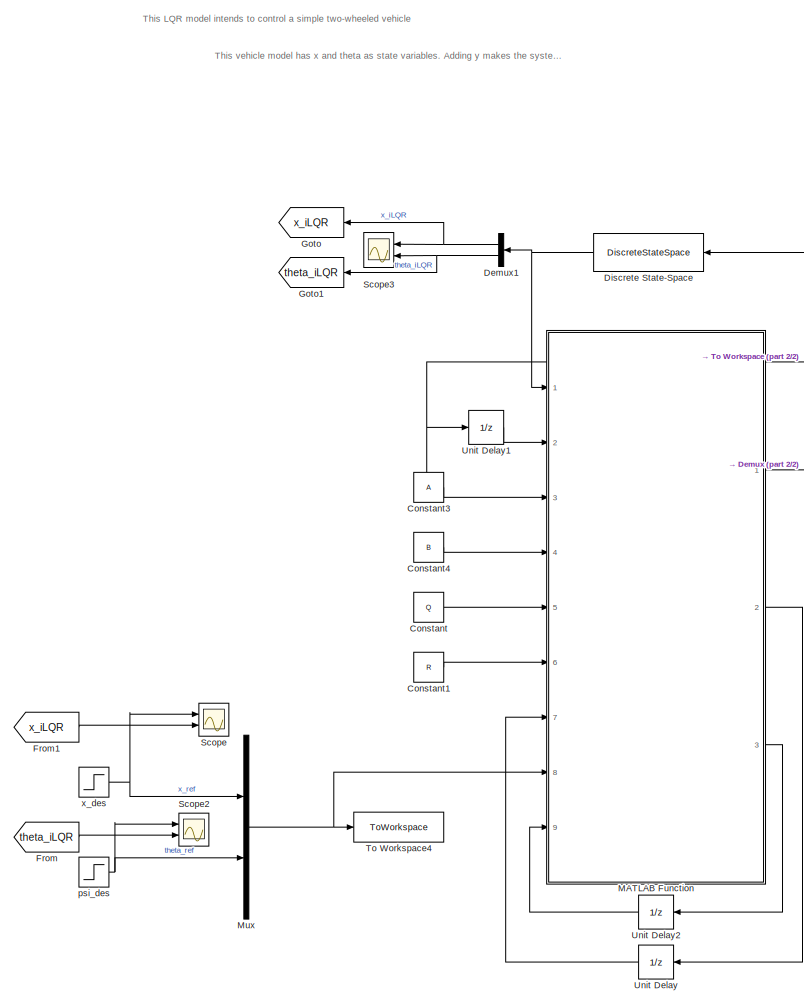
[diagram: root canvas - part 1/2, left side, full height]
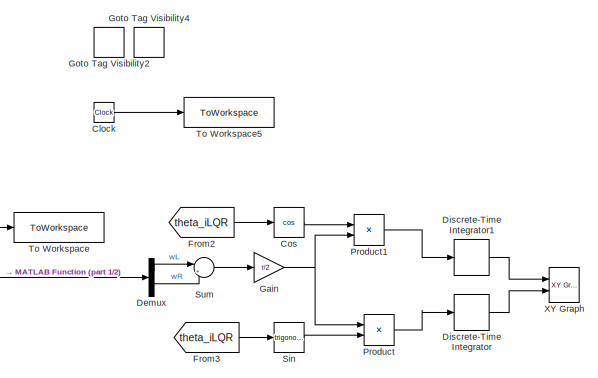
[diagram: root canvas - part 2/2, middle right region]
MODEL slx_ac5df91913a6
KIND model
CONFIG AbsTol = auto
CONFIG EnableMultiTasking = off
CONFIG FixedStep = 0.001
CONFIG MaxStep = 0.01
CONFIG MinStep = auto
CONFIG RelTol = 1e-3
CONFIG SampleTimeConstraint = Unconstrained
CONFIG SolverName = FixedStepDiscrete
CONFIG StartTime = 0.0
CONFIG StopTime = 20
BLOCK [Clock] Clock
BLOCK [Constant] Constant
  Value = Q
BLOCK [Constant] Constant1
  Value = R
BLOCK [Constant] Constant3
  Value = A
BLOCK [Constant] Constant4
  Value = B
BLOCK [Trigonometry] Cos
  Operator = cos
  Ports = [1, 1]
BLOCK [Demux] Demux
  Outputs = 2
  Ports = [1, 2]
BLOCK [Demux] Demux1
  NameLocation = top
  Outputs = 2
  Ports = [1, 2]
BLOCK [DiscreteStateSpace] Discrete State-Space
  A = A
  B = B
  C = eye(2)
  D = zeros(2)
  NameLocation = top
  SampleTime = -1
BLOCK [DiscreteIntegrator] Discrete-Time Integrator
  ICPrevOutput = DiscIntNeverNeededParam
  ICPrevScaledInput = DiscIntNeverNeededParam
  InitialConditionSetting = Auto
  Ports = [1, 1]
  SampleTime = -1
BLOCK [DiscreteIntegrator] Discrete-Time Integrator1
  ICPrevOutput = DiscIntNeverNeededParam
  ICPrevScaledInput = DiscIntNeverNeededParam
  InitialConditionSetting = Auto
  Ports = [1, 1]
  SampleTime = -1
BLOCK [From] From
  GotoTag = theta_iLQR
BLOCK [From] From1
  GotoTag = x_iLQR
BLOCK [From] From2
  GotoTag = theta_iLQR
BLOCK [From] From3
  GotoTag = theta_iLQR
BLOCK [Gain] Gain
  Gain = r/2
BLOCK [Goto] Goto
  GotoTag = x_iLQR
BLOCK [GotoTagVisibility] Goto Tag Visibility2
  GotoTag = x
BLOCK [GotoTagVisibility] Goto Tag Visibility4
  GotoTag = theta
BLOCK [Goto] Goto1
  GotoTag = theta_iLQR
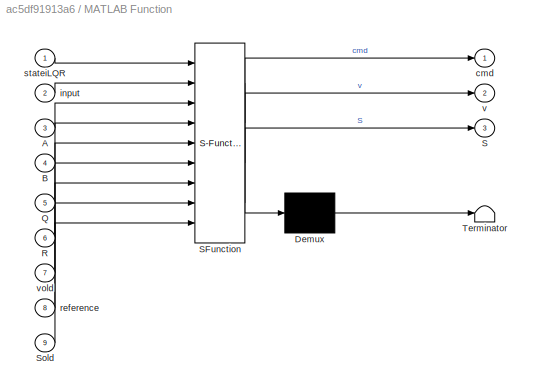
BLOCK [SubSystem] MATLAB Function
  ErrorFcn = Stateflow.Translate.translate
  PermitHierarchicalResolution = ExplicitOnly
  Ports = [9, 3]
  RequestExecContextInheritance = off
  SFBlockType = MATLAB Function
  TreatAsAtomicUnit = on
BLOCK [Demux] MATLAB Function/ Demux 
  Outputs = 1
  Ports = [1, 1]
BLOCK [S-Function] MATLAB Function/ SFunction 
  EnableBusSupport = on
  FunctionName = sf_sfun
  PortCounts = [9 4]
  Ports = [9, 4]
  SFcnIsStateOwnerBlock = off
  SFunctionDeploymentMode = off
  Tag = Stateflow S-Function 2
BLOCK [Terminator] MATLAB Function/ Terminator 
BLOCK [Inport] MATLAB Function/A
  Port = 3
BLOCK [Inport] MATLAB Function/B
  Port = 4
BLOCK [Inport] MATLAB Function/Q
  Port = 5
BLOCK [Inport] MATLAB Function/R
  Port = 6
BLOCK [Outport] MATLAB Function/S
  Port = 3
BLOCK [Inport] MATLAB Function/Sold
  Port = 9
BLOCK [Outport] MATLAB Function/cmd
BLOCK [Inport] MATLAB Function/input
  Port = 2
BLOCK [Inport] MATLAB Function/reference
  Port = 8
BLOCK [Inport] MATLAB Function/stateiLQR
BLOCK [Outport] MATLAB Function/v
  Port = 2
BLOCK [Inport] MATLAB Function/vold
  Port = 7
BLOCK [Mux] Mux
  DisplayOption = bar
  Inputs = 2
  Ports = [2, 1]
BLOCK [Product] Product
  Ports = [2, 1]
BLOCK [Product] Product1
  Ports = [2, 1]
BLOCK [Scope] Scope
  Floating = off
  NumInputPorts = 2
  Ports = [2]
  ScopeSpecificationString = Simulink.scopes.TimeScopeBlockCfg('CurrentConfiguration', extmgr.ConfigurationSet(extmgr.Configuration('Core','General UI',true),extmgr.Configuration('Core','Source UI',true),extmgr.Configuration('Sources','WiredSimulink',true),extmgr.Configuration('Visuals','Time Domain',true,'SerializedDisplays',{struct('MinYLimReal','-0.14621','MaxYLimReal','1.3159','YLabelReal','','MinYLimMag','0.00000','MaxYL...<+1473ch>
BLOCK [Scope] Scope2
  Floating = off
  NumInputPorts = 2
  Ports = [2]
  ScopeSpecificationString = Simulink.scopes.TimeScopeBlockCfg('CurrentConfiguration', extmgr.ConfigurationSet(extmgr.Configuration('Core','General UI',true),extmgr.Configuration('Core','Source UI',true),extmgr.Configuration('Sources','WiredSimulink',true,'DataLoggingVariableName','ScopeData2'),extmgr.Configuration('Visuals','Time Domain',true,'SerializedDisplays',{struct('MinYLimReal','-0.14569','MaxYLimReal','1.31117','YLab...<+1468ch>
BLOCK [Scope] Scope3
  Floating = off
  NameLocation = top
  NumInputPorts = 2
  Ports = [2]
  ScopeSpecificationString = Simulink.scopes.TimeScopeBlockCfg('CurrentConfiguration', extmgr.ConfigurationSet(extmgr.Configuration('Core','General UI',true),extmgr.Configuration('Core','Source UI',true),extmgr.Configuration('Sources','WiredSimulink',true,'DataLoggingVariableName','ScopeData3'),extmgr.Configuration('Visuals','Time Domain',true,'SerializedDisplays',{struct('MinYLimReal','-0.14621','MaxYLimReal','1.3159','YLabe...<+1539ch>
BLOCK [Trigonometry] Sin
  Ports = [1, 1]
BLOCK [Sum] Sum
  Inputs = |++
  Ports = [2, 1]
BLOCK [ToWorkspace] To Workspace
  FixptAsFi = on
  MaxDataPoints = inf
  Ports = [1]
  SampleTime = -1
  VariableName = w
BLOCK [ToWorkspace] To Workspace4
  FixptAsFi = on
  MaxDataPoints = inf
  Ports = [1]
  SampleTime = -1
  VariableName = references
BLOCK [ToWorkspace] To Workspace5
  FixptAsFi = on
  MaxDataPoints = inf
  Ports = [1]
  SampleTime = -1
  VariableName = time
BLOCK [UnitDelay] Unit Delay
  HasFrameUpgradeWarning = on
  InitialCondition = zeros(2,1)
  SampleTime = -1
BLOCK [UnitDelay] Unit Delay1
  HasFrameUpgradeWarning = on
  InitialCondition = [0, 0]
  SampleTime = -1
BLOCK [UnitDelay] Unit Delay2
  HasFrameUpgradeWarning = on
  InitialCondition = Qf
  SampleTime = -1
BLOCK [Reference] XY Graph  REF=simulink/Sinks/XY Graph
  Ports = [2]
  SourceBlock = simulink/Sinks/XY Graph
  SourceProductBaseCode = SL
  SourceType = XY scope.
BLOCK [Step] psi_des
  After = 3.141516
  SampleTime = 0
  Time = 0
BLOCK [Step] x_des
  SampleTime = 0
  Time = 3
ANNOTATION (root): This LQR model intends to control a simple two-wheeled vehicle
ANNOTATION (root): This vehicle model has x and theta as state variables. Adding y makes the system non-controllable. To see the inertial movement of the robot, refer to the xy scope
LINE Clock:1 -> To Workspace5:1
LINE Constant1:1 -> MATLAB Function:6
LINE Constant3:1 -> MATLAB Function:3
LINE Constant4:1 -> MATLAB Function:4
LINE Constant:1 -> MATLAB Function:5
LINE Cos:1 -> Product1:1
NET Demux1:1 -> Goto:1, Scope3:1
NET Demux1:2 -> Goto1:1, Scope3:2
LINE Demux:1 -> Sum:1
LINE Demux:2 -> Sum:2
NET Discrete State-Space:1 -> Demux1:1, MATLAB Function:1
LINE Discrete-Time Integrator1:1 -> XY Graph:1
LINE Discrete-Time Integrator:1 -> XY Graph:2
LINE From1:1 -> Scope:2
LINE From2:1 -> Cos:1
LINE From3:1 -> Sin:1
LINE From:1 -> Scope2:2
NET Gain:1 -> Product1:2, Product:1
NET MATLAB Function:1 -> Demux:1, Discrete State-Space:1, To Workspace:1, Unit Delay1:1
LINE MATLAB Function:2 -> Unit Delay:1
LINE MATLAB Function:3 -> Unit Delay2:1
NET Mux:1 -> MATLAB Function:8, To Workspace4:1
LINE Product1:1 -> Discrete-Time Integrator1:1
LINE Product:1 -> Discrete-Time Integrator:1
LINE Sin:1 -> Product:2
LINE Sum:1 -> Gain:1
LINE Unit Delay1:1 -> MATLAB Function:2
LINE Unit Delay2:1 -> MATLAB Function:9
LINE Unit Delay:1 -> MATLAB Function:7
NET psi_des:1 -> Mux:2, Scope2:1
NET x_des:1 -> Mux:1, Scope:1
note: NET lines group one-source signal fan-out (src -> all destinations, sorted); 1:1 wires keep LINE
CHART MATLAB Function states=1 transitions=1
  STATE_LABEL 'eML_blk_kernel()'
  STATE_LABEL 'SCRIPT:\nfunction [cmd, v, S]= fcn(stateiLQR, input ,A,B, Q, R, vold, reference, Sold)\n\n% r = 0.02;\n% b = 0.185;\n% dt = 0.001;\n\n% toll = 3*10^-5;\n\n% A = [1 0 dt*-sin(psi)*r/2*(wR+wL);...\n%      0 1 dt*cos(psi)*r/2*(wR+wL);...\n%      0 0 1];\n% B = dt*[cos(psi)*r/2 cos(psi)*r/2;...\n%      sin(psi)*r/2 sin(psi)*r/2;...\n%      -r/b r/b];\n% A = eye(3);\n% B = dt*[r/2 r/2;\n%      0 0;\n%      -r/b r/b];\n% ...<+520ch>'
CHART  states=0 transitions=0
